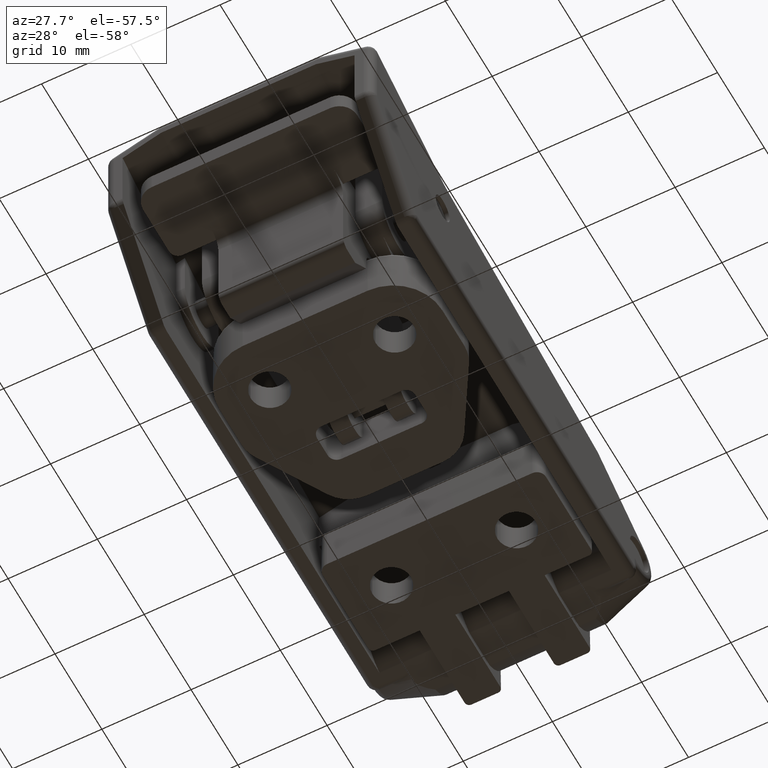
[diagram: clean part render]
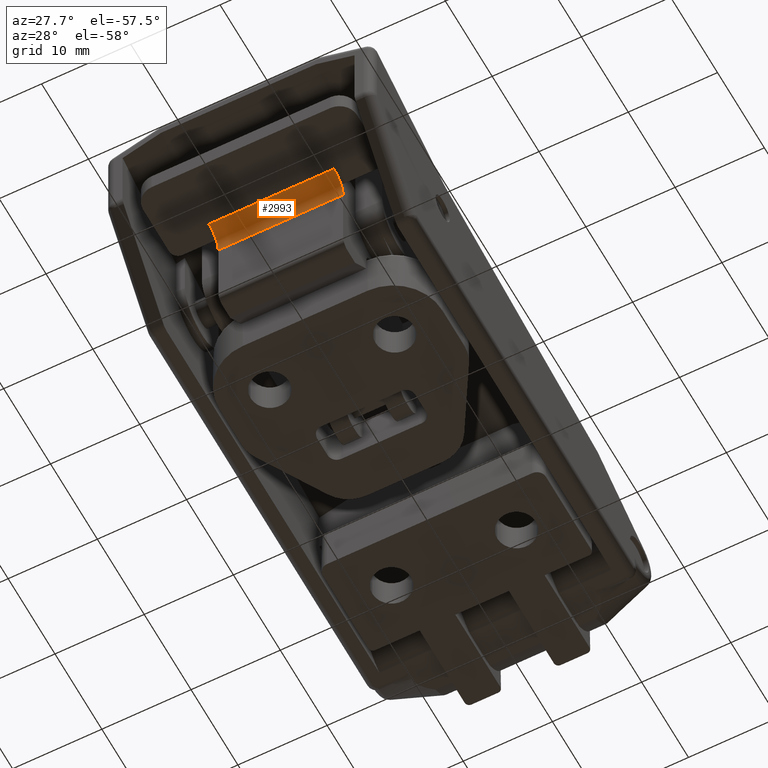
[diagram: same view with one face highlighted and labeled with its STEP entity id]
A machine part, auxiliary view. The second image highlights one B-rep face of the part: STEP entity #2993.
In plain terms, the highlighted cylindrical surface (edge-blend (fillet) strip) has radius 2 mm, axis along (1, 0, 0).
Its self-contained STEP definition (entity closure, byte-faithful):
#101 = VERTEX_POINT ( 'NONE', #11297 ) ;
#906 = AXIS2_PLACEMENT_3D ( 'NONE', #9465, #2917, #10586 ) ;
#1134 = EDGE_LOOP ( 'NONE', ( #5211, #9233, #1222, #14122 ) ) ;
#1222 = ORIENTED_EDGE ( 'NONE', *, *, #12863, .F. ) ;
#1236 = EDGE_CURVE ( 'NONE', #9227, #1752, #13474, .T. ) ;
#1752 = VERTEX_POINT ( 'NONE', #9164 ) ;
#2843 = DIRECTION ( 'NONE',  ( 0.0000000000000000000, 0.0000000000000000000, -1.000000000000000000 ) ) ;
#2917 = DIRECTION ( 'NONE',  ( 1.000000000000000000, -0.0000000000000000000, -0.0000000000000000000 ) ) ;
#2993 = ADVANCED_FACE ( 'NONE', ( #9803 ), #9466, .F. ) ;
#3799 = LINE ( 'NONE', #11322, #12206 ) ;
#3958 = CARTESIAN_POINT ( 'NONE',  ( 7.000000000000000000, -50.00000000000000000, 5.499999999999992900 ) ) ;
#4114 = AXIS2_PLACEMENT_3D ( 'NONE', #4680, #12339, #5759 ) ;
#4680 = CARTESIAN_POINT ( 'NONE',  ( 7.000000000000000000, -50.00000000000000000, 5.499999999999992900 ) ) ;
#5211 = ORIENTED_EDGE ( 'NONE', *, *, #12692, .F. ) ;
#5700 = CARTESIAN_POINT ( 'NONE',  ( -7.000000000000000000, -48.00000000000000000, 5.499999999999992900 ) ) ;
#5759 = DIRECTION ( 'NONE',  ( 0.0000000000000000000, 0.0000000000000000000, -1.000000000000000000 ) ) ;
#7193 = DIRECTION ( 'NONE',  ( 1.000000000000000000, 0.0000000000000000000, 0.0000000000000000000 ) ) ;
#7657 = AXIS2_PLACEMENT_3D ( 'NONE', #3958, #7193, #2843 ) ;
#9164 = CARTESIAN_POINT ( 'NONE',  ( -7.000000000000000000, -48.00000000000000000, 5.499999999999992900 ) ) ;
#9227 = VERTEX_POINT ( 'NONE', #11891 ) ;
#9233 = ORIENTED_EDGE ( 'NONE', *, *, #14128, .F. ) ;
#9465 = CARTESIAN_POINT ( 'NONE',  ( -7.000000000000000000, -50.00000000000000000, 5.499999999999992900 ) ) ;
#9466 = CYLINDRICAL_SURFACE ( 'NONE', #7657, 2.000000000000000000 ) ;
#9803 = FACE_OUTER_BOUND ( 'NONE', #1134, .T. ) ;
#10214 = DIRECTION ( 'NONE',  ( 1.000000000000000000, -0.0000000000000000000, -0.0000000000000000000 ) ) ;
#10486 = CIRCLE ( 'NONE', #906, 2.000000000000000000 ) ;
#10586 = DIRECTION ( 'NONE',  ( 0.0000000000000000000, 0.0000000000000000000, 1.000000000000000000 ) ) ;
#11255 = VECTOR ( 'NONE', #12281, 1000.000000000000000 ) ;
#11297 = CARTESIAN_POINT ( 'NONE',  ( 7.000000000000000000, -50.00000000000000000, 7.499999999999992900 ) ) ;
#11322 = CARTESIAN_POINT ( 'NONE',  ( 7.000000000000000000, -50.00000000000000000, 7.499999999999992900 ) ) ;
#11891 = CARTESIAN_POINT ( 'NONE',  ( 7.000000000000000000, -48.00000000000000000, 5.499999999999992900 ) ) ;
#12206 = VECTOR ( 'NONE', #10214, 1000.000000000000000 ) ;
#12281 = DIRECTION ( 'NONE',  ( -1.000000000000000000, 0.0000000000000000000, 0.0000000000000000000 ) ) ;
#12339 = DIRECTION ( 'NONE',  ( -1.000000000000000000, -0.0000000000000000000, -0.0000000000000000000 ) ) ;
#12692 = EDGE_CURVE ( 'NONE', #101, #9227, #13782, .T. ) ;
#12863 = EDGE_CURVE ( 'NONE', #1752, #12977, #10486, .T. ) ;
#12977 = VERTEX_POINT ( 'NONE', #14065 ) ;
#13474 = LINE ( 'NONE', #5700, #11255 ) ;
#13782 = CIRCLE ( 'NONE', #4114, 2.000000000000000000 ) ;
#14065 = CARTESIAN_POINT ( 'NONE',  ( -7.000000000000000000, -50.00000000000000000, 7.499999999999992900 ) ) ;
#14122 = ORIENTED_EDGE ( 'NONE', *, *, #1236, .F. ) ;
#14128 = EDGE_CURVE ( 'NONE', #12977, #101, #3799, .T. ) ;